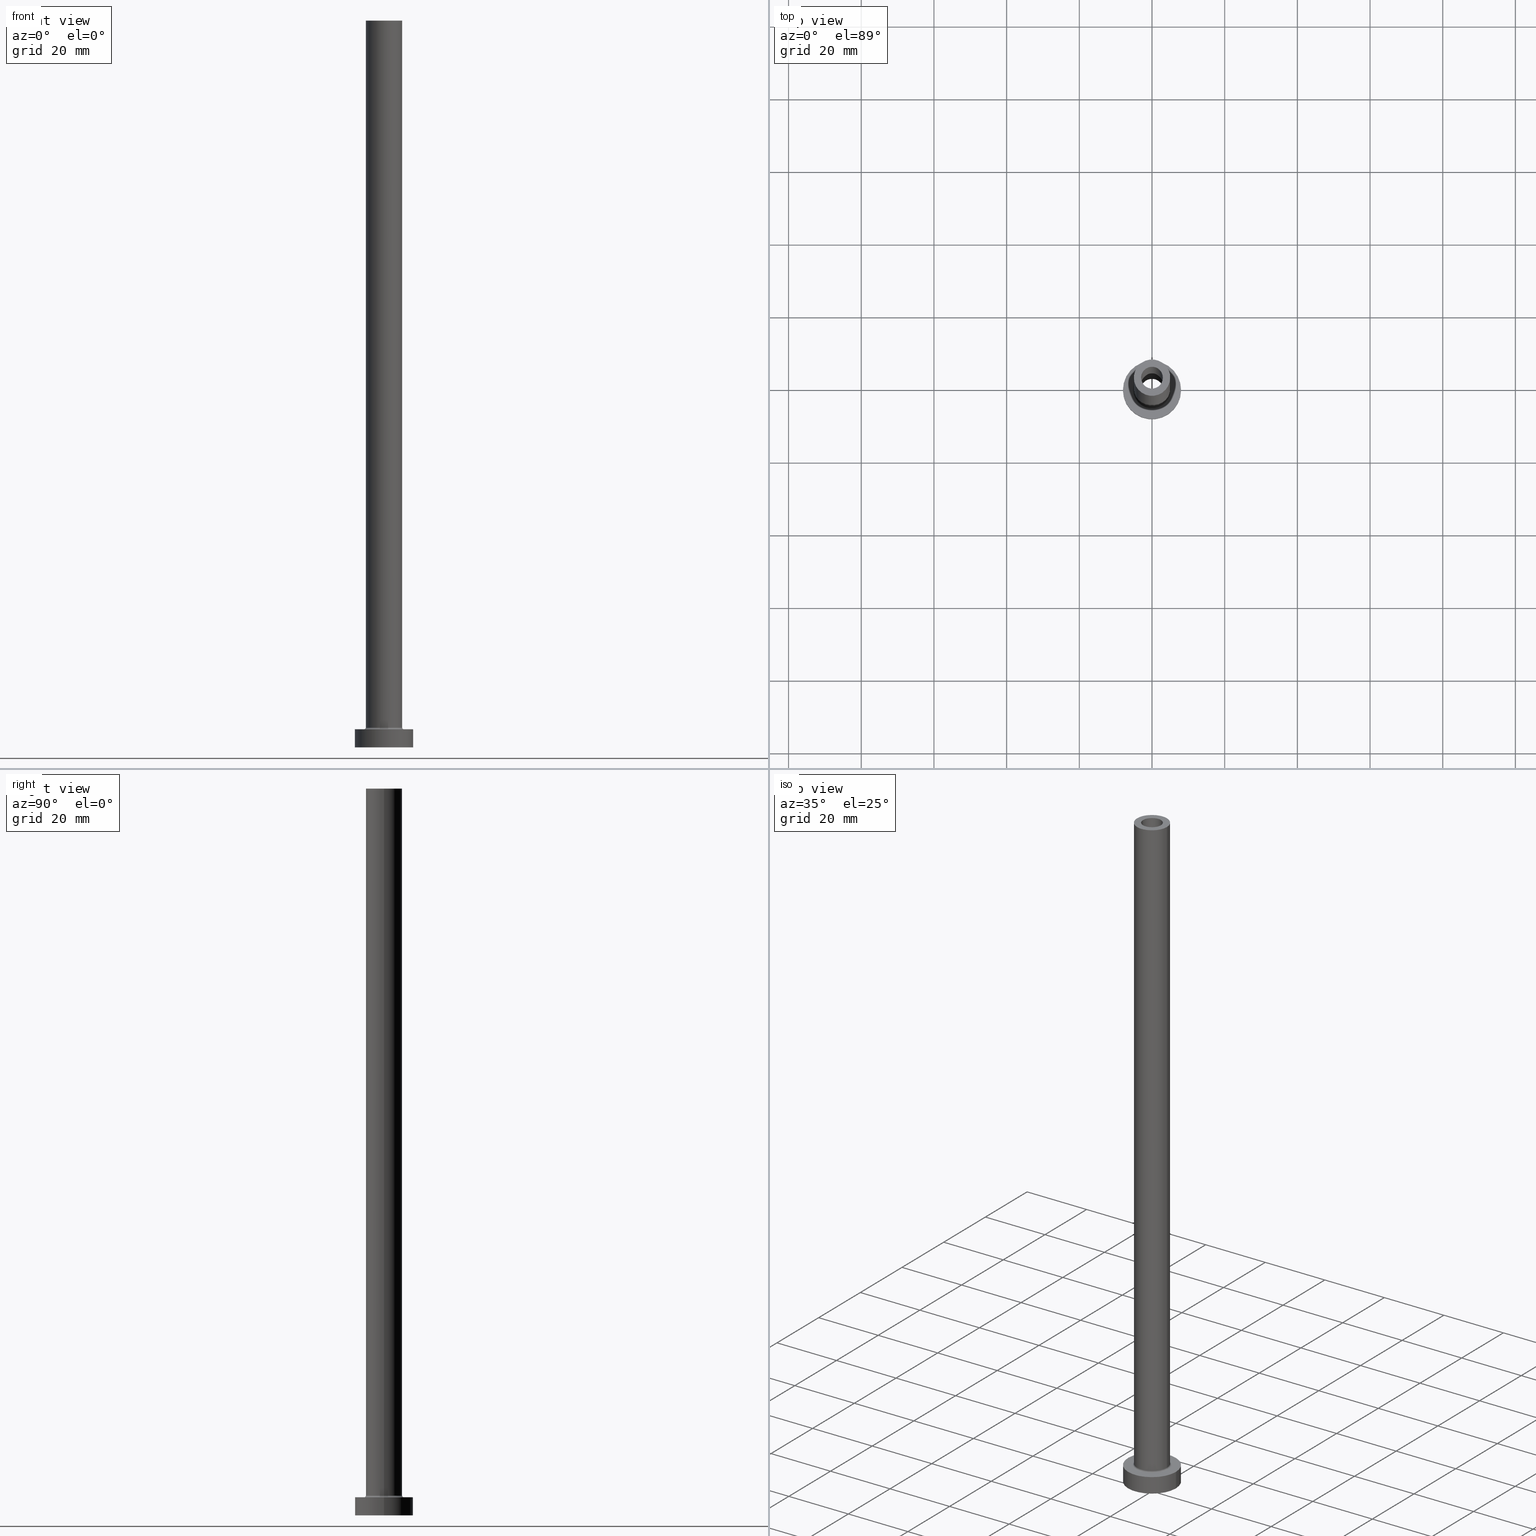
[diagram: canonical four-view strip — front | top / right | iso, engineering-drawing reading convention]
A machine part, canonical four-view strip (front | top / right | iso — engineering-drawing reading convention). The complete STEP part file that produces these views, byte-faithful:
ISO-10303-21;
HEADER;
FILE_DESCRIPTION (( 'STEP AP203' ),
    '1' );
FILE_NAME ('640f.STEP',
    '2023-02-13T15:32:00',
    ( '' ),
    ( '' ),
    'SwSTEP 2.0',
    'SolidWorks 2019',
    '' );
FILE_SCHEMA (( 'CONFIG_CONTROL_DESIGN' ));
ENDSEC;

DATA;
#1 = DIRECTION ( 'NONE',  ( 0.000000000000000000, 0.000000000000000000, 1.000000000000000000 ) ) ;
#2 = EDGE_CURVE ( 'NONE', #407, #4, #384, .T. ) ;
#3 = AXIS2_PLACEMENT_3D ( 'NONE', #393, #216, #281 ) ;
#4 = VERTEX_POINT ( 'NONE', #419 ) ;
#5 = DATE_TIME_ROLE ( 'classification_date' ) ;
#6 = DIRECTION ( 'NONE',  ( 0.000000000000000000, 0.000000000000000000, -1.000000000000000000 ) ) ;
#7 = ORIENTED_EDGE ( 'NONE', *, *, #2, .T. ) ;
#8 = FACE_OUTER_BOUND ( 'NONE', #49, .T. ) ;
#9 = APPROVAL ( #157, 'NEUR�EN�' ) ;
#10 = ORIENTED_EDGE ( 'NONE', *, *, #366, .T. ) ;
#11 = PERSON_AND_ORGANIZATION ( #141, #357 ) ;
#12 = FACE_OUTER_BOUND ( 'NONE', #291, .T. ) ;
#13 = VECTOR ( 'NONE', #430, 1000.000000000000000 ) ;
#14 = DIRECTION ( 'NONE',  ( 1.000000000000000000, 0.000000000000000000, 0.000000000000000000 ) ) ;
#15 = DIRECTION ( 'NONE',  ( 1.000000000000000000, 0.000000000000000000, 0.000000000000000000 ) ) ;
#16 = EDGE_LOOP ( 'NONE', ( #10, #416, #89, #231 ) ) ;
#17 = CYLINDRICAL_SURFACE ( 'NONE', #268, 8.000000000000000000 ) ;
#18 = ADVANCED_FACE ( 'NONE', ( #97, #31 ), #206, .T. ) ;
#19 = DIRECTION ( 'NONE',  ( -0.000000000000000000, -0.000000000000000000, -1.000000000000000000 ) ) ;
#20 = CIRCLE ( 'NONE', #39, 3.150000000000000355 ) ;
#21 = CIRCLE ( 'NONE', #181, 8.000000000000000000 ) ;
#22 = ORIENTED_EDGE ( 'NONE', *, *, #331, .T. ) ;
#23 = APPLICATION_CONTEXT ( 'configuration controlled 3d designs of mechanical parts and assemblies' ) ;
#24 = ADVANCED_FACE ( 'NONE', ( #145, #76 ), #184, .F. ) ;
#25 = ORIENTED_EDGE ( 'NONE', *, *, #124, .T. ) ;
#26 = AXIS2_PLACEMENT_3D ( 'NONE', #51, #297, #373 ) ;
#27 = DIRECTION ( 'NONE',  ( -1.000000000000000000, 0.000000000000000000, 0.000000000000000000 ) ) ;
#28 = ORIENTED_EDGE ( 'NONE', *, *, #283, .T. ) ;
#29 = ORIENTED_EDGE ( 'NONE', *, *, #445, .F. ) ;
#30 = EDGE_CURVE ( 'NONE', #363, #66, #362, .T. ) ;
#31 = FACE_OUTER_BOUND ( 'NONE', #284, .T. ) ;
#32 = ORIENTED_EDGE ( 'NONE', *, *, #408, .F. ) ;
#33 = DIRECTION ( 'NONE',  ( 1.000000000000000000, 0.000000000000000000, 0.000000000000000000 ) ) ;
#34 = CARTESIAN_POINT ( 'NONE',  ( 5.000000000000000000, 6.123233995736766282E-16, 200.0000000000000000 ) ) ;
#35 = EDGE_LOOP ( 'NONE', ( #207, #93 ) ) ;
#36 = CARTESIAN_POINT ( 'NONE',  ( 3.150000000000000355, 3.857637417314163182E-16, 155.0000000000000284 ) ) ;
#37 = CARTESIAN_POINT ( 'NONE',  ( 8.000000000000000000, 9.797174393178825657E-16, 5.000000000000000000 ) ) ;
#38 = DIRECTION ( 'NONE',  ( 0.000000000000000000, -1.000000000000000000, 0.000000000000000000 ) ) ;
#39 = AXIS2_PLACEMENT_3D ( 'NONE', #261, #156, #15 ) ;
#40 = PERSON_AND_ORGANIZATION ( #141, #357 ) ;
#41 = EDGE_CURVE ( 'NONE', #407, #338, #298, .T. ) ;
#42 = DIRECTION ( 'NONE',  ( -0.000000000000000000, -0.000000000000000000, -1.000000000000000000 ) ) ;
#43 = ORIENTED_EDGE ( 'NONE', *, *, #276, .T. ) ;
#44 = CALENDAR_DATE ( 2023, 13, 2 ) ;
#45 = CYLINDRICAL_SURFACE ( 'NONE', #61, 3.000000000000000444 ) ;
#46 = ORIENTED_EDGE ( 'NONE', *, *, #64, .T. ) ;
#47 = FACE_OUTER_BOUND ( 'NONE', #178, .T. ) ;
#48 = AXIS2_PLACEMENT_3D ( 'NONE', #182, #38, #322 ) ;
#49 = EDGE_LOOP ( 'NONE', ( #320, #238, #7, #29 ) ) ;
#50 = PERSON_AND_ORGANIZATION_ROLE ( 'creator' ) ;
#51 = CARTESIAN_POINT ( 'NONE',  ( 0.000000000000000000, 0.000000000000000000, 200.0000000000000000 ) ) ;
#52 = CC_DESIGN_PERSON_AND_ORGANIZATION_ASSIGNMENT ( #11, #152, ( #441 ) ) ;
#53 = DIRECTION ( 'NONE',  ( 1.000000000000000000, 0.000000000000000000, 0.000000000000000000 ) ) ;
#54 = VERTEX_POINT ( 'NONE', #316 ) ;
#55 = ORIENTED_EDGE ( 'NONE', *, *, #131, .F. ) ;
#56 = AXIS2_PLACEMENT_3D ( 'NONE', #228, #167, #190 ) ;
#57 = EDGE_CURVE ( 'NONE', #338, #125, #173, .T. ) ;
#58 = ORIENTED_EDGE ( 'NONE', *, *, #2, .F. ) ;
#59 = DIRECTION ( 'NONE',  ( -0.000000000000000000, -0.000000000000000000, -1.000000000000000000 ) ) ;
#60 = ORIENTED_EDGE ( 'NONE', *, *, #314, .T. ) ;
#61 = AXIS2_PLACEMENT_3D ( 'NONE', #251, #6, #354 ) ;
#62 = DIRECTION ( 'NONE',  ( 1.000000000000000000, 0.000000000000000000, 0.000000000000000000 ) ) ;
#63 = ORIENTED_EDGE ( 'NONE', *, *, #70, .F. ) ;
#64 = EDGE_CURVE ( 'NONE', #220, #67, #179, .T. ) ;
#65 = DIRECTION ( 'NONE',  ( 0.000000000000000000, 0.000000000000000000, -1.000000000000000000 ) ) ;
#66 = VERTEX_POINT ( 'NONE', #460 ) ;
#67 = VERTEX_POINT ( 'NONE', #80 ) ;
#68 = CARTESIAN_POINT ( 'NONE',  ( 5.000000000000000000, 6.123233995736766282E-16, 5.500000000000005329 ) ) ;
#69 = AXIS2_PLACEMENT_3D ( 'NONE', #318, #210, #176 ) ;
#70 = EDGE_CURVE ( 'NONE', #99, #407, #390, .T. ) ;
#71 = CARTESIAN_POINT ( 'NONE',  ( 0.000000000000000000, 0.000000000000000000, 200.0000000000000000 ) ) ;
#72 = FACE_OUTER_BOUND ( 'NONE', #197, .T. ) ;
#73 = PRODUCT_DEFINITION_SHAPE ( 'NONE', 'NONE',  #336 ) ;
#74 = CARTESIAN_POINT ( 'NONE',  ( 0.000000000000000000, 0.000000000000000000, 155.0000000000000284 ) ) ;
#75 = DATE_AND_TIME ( #257, #427 ) ;
#76 = FACE_OUTER_BOUND ( 'NONE', #151, .T. ) ;
#77 = ORIENTED_EDGE ( 'NONE', *, *, #448, .F. ) ;
#78 = AXIS2_PLACEMENT_3D ( 'NONE', #102, #143, #380 ) ;
#79 = ADVANCED_FACE ( 'NONE', ( #360 ), #45, .F. ) ;
#80 = CARTESIAN_POINT ( 'NONE',  ( -3.150000000000000355, 0.000000000000000000, 0.000000000000000000 ) ) ;
#81 = PERSON_AND_ORGANIZATION ( #141, #357 ) ;
#82 = DIRECTION ( 'NONE',  ( 1.000000000000000000, 0.000000000000000000, 0.000000000000000000 ) ) ;
#83 = PERSON_AND_ORGANIZATION ( #141, #357 ) ;
#84 = DIRECTION ( 'NONE',  ( 0.000000000000000000, 0.000000000000000000, -1.000000000000000000 ) ) ;
#85 = EDGE_CURVE ( 'NONE', #363, #91, #21, .T. ) ;
#86 = CIRCLE ( 'NONE', #26, 3.000000000000000444 ) ;
#87 = CARTESIAN_POINT ( 'NONE',  ( 0.000000000000000000, 0.000000000000000000, 5.500000000000005329 ) ) ;
#88 = ADVANCED_FACE ( 'NONE', ( #142, #388 ), #150, .T. ) ;
#89 = ORIENTED_EDGE ( 'NONE', *, *, #218, .T. ) ;
#90 = CIRCLE ( 'NONE', #410, 3.000000000000000444 ) ;
#91 = VERTEX_POINT ( 'NONE', #255 ) ;
#92 = CARTESIAN_POINT ( 'NONE',  ( 3.000000000000000444, 3.673940397442059868E-16, 155.0000000000000284 ) ) ;
#93 = ORIENTED_EDGE ( 'NONE', *, *, #85, .T. ) ;
#94 = FACE_OUTER_BOUND ( 'NONE', #16, .T. ) ;
#95 = VECTOR ( 'NONE', #438, 1000.000000000000000 ) ;
#96 = AXIS2_PLACEMENT_3D ( 'NONE', #457, #350, #14 ) ;
#97 = FACE_BOUND ( 'NONE', #309, .T. ) ;
#98 = CARTESIAN_POINT ( 'NONE',  ( 3.150000000000000355, 3.857637417314163182E-16, 163.9095454429505594 ) ) ;
#99 = VERTEX_POINT ( 'NONE', #148 ) ;
#100 = DIRECTION ( 'NONE',  ( 1.000000000000000000, 0.000000000000000000, 0.000000000000000000 ) ) ;
#101 = CARTESIAN_POINT ( 'NONE',  ( -5.500000000000000000, 6.735557395310442023E-16, 5.000000000000002665 ) ) ;
#102 = CARTESIAN_POINT ( 'NONE',  ( 0.000000000000000000, 0.000000000000000000, 5.000000000000000000 ) ) ;
#103 = TOROIDAL_SURFACE ( 'NONE', #56, 5.500000000000000000, 0.5000000000000000000 ) ;
#104 = VECTOR ( 'NONE', #383, 1000.000000000000000 ) ;
#105 = VERTEX_POINT ( 'NONE', #353 ) ;
#106 = FACE_BOUND ( 'NONE', #330, .T. ) ;
#107 = CARTESIAN_POINT ( 'NONE',  ( 0.000000000000000000, 0.000000000000000000, 5.000000000000000000 ) ) ;
#108 = COORDINATED_UNIVERSAL_TIME_OFFSET ( 1, 0, .AHEAD. ) ;
#109 = DIRECTION ( 'NONE',  ( 0.000000000000000000, 0.000000000000000000, 1.000000000000000000 ) ) ;
#110 = ADVANCED_FACE ( 'NONE', ( #8 ), #288, .T. ) ;
#111 = APPROVAL_DATE_TIME ( #75, #382 ) ;
#112 = CIRCLE ( 'NONE', #368, 3.150000000000000355 ) ;
#113 = CARTESIAN_POINT ( 'NONE',  ( 0.000000000000000000, 0.000000000000000000, 0.000000000000000000 ) ) ;
#114 = ORIENTED_EDGE ( 'NONE', *, *, #218, .F. ) ;
#115 = UNCERTAINTY_MEASURE_WITH_UNIT (LENGTH_MEASURE( 1.000000000000000082E-05 ), #344, 'distance_accuracy_value', 'NONE');
#116 = APPROVAL_DATE_TIME ( #432, #9 ) ;
#117 = CARTESIAN_POINT ( 'NONE',  ( 0.000000000000000000, 0.000000000000000000, 163.9095454429505594 ) ) ;
#118 = PRODUCT_RELATED_PRODUCT_CATEGORY ( 'detail', '', ( #441 ) ) ;
#119 = LINE ( 'NONE', #400, #160 ) ;
#120 = COORDINATED_UNIVERSAL_TIME_OFFSET ( 1, 0, .AHEAD. ) ;
#121 = DIRECTION ( 'NONE',  ( -1.000000000000000000, 0.000000000000000000, 0.000000000000000000 ) ) ;
#122 = CIRCLE ( 'NONE', #243, 8.000000000000000000 ) ;
#123 = APPROVAL_PERSON_ORGANIZATION ( #292, #9, #332 ) ;
#124 = EDGE_CURVE ( 'NONE', #125, #338, #135, .T. ) ;
#125 = VERTEX_POINT ( 'NONE', #101 ) ;
#126 = CIRCLE ( 'NONE', #404, 5.000000000000000000 ) ;
#127 = LOCAL_TIME ( 16, 32, 0.000000000000000000, #120 ) ;
#128 = DIRECTION ( 'NONE',  ( -0.000000000000000000, -0.000000000000000000, -1.000000000000000000 ) ) ;
#129 = ORIENTED_EDGE ( 'NONE', *, *, #267, .T. ) ;
#130 = DIRECTION ( 'NONE',  ( 0.000000000000000000, 0.000000000000000000, 1.000000000000000000 ) ) ;
#131 = EDGE_CURVE ( 'NONE', #67, #343, #303, .T. ) ;
#132 = ORIENTED_EDGE ( 'NONE', *, *, #131, .T. ) ;
#133 = DIRECTION ( 'NONE',  ( 0.000000000000000000, 0.000000000000000000, 1.000000000000000000 ) ) ;
#134 = DIRECTION ( 'NONE',  ( 1.000000000000000000, 0.000000000000000000, 0.000000000000000000 ) ) ;
#135 = CIRCLE ( 'NONE', #417, 5.500000000000000000 ) ;
#136 = DIRECTION ( 'NONE',  ( 0.000000000000000000, 0.000000000000000000, 1.000000000000000000 ) ) ;
#137 = ADVANCED_FACE ( 'NONE', ( #242 ), #385, .T. ) ;
#138 = CARTESIAN_POINT ( 'NONE',  ( 0.000000000000000000, 0.000000000000000000, 155.0000000000000284 ) ) ;
#139 = DIRECTION ( 'NONE',  ( 1.000000000000000000, 0.000000000000000000, 0.000000000000000000 ) ) ;
#140 = CARTESIAN_POINT ( 'NONE',  ( 0.000000000000000000, 0.000000000000000000, 155.0000000000000284 ) ) ;
#141 = PERSON ( 'NEUR�EN�', 'NEUR�EN�', 'NEUR�EN�', ('NEUR�EN�'), ('NEUR�EN�'), ('NEUR�EN�') ) ;
#142 = FACE_BOUND ( 'NONE', #345, .T. ) ;
#143 = DIRECTION ( 'NONE',  ( -0.000000000000000000, -0.000000000000000000, -1.000000000000000000 ) ) ;
#144 = AXIS2_PLACEMENT_3D ( 'NONE', #459, #389, #205 ) ;
#145 = FACE_BOUND ( 'NONE', #266, .T. ) ;
#146 = VERTEX_POINT ( 'NONE', #302 ) ;
#147 = EDGE_CURVE ( 'NONE', #4, #407, #214, .T. ) ;
#148 = CARTESIAN_POINT ( 'NONE',  ( 5.000000000000000000, 6.123233995736766282E-16, 200.0000000000000000 ) ) ;
#149 = APPROVAL_STATUS ( 'not_yet_approved' ) ;
#150 = PLANE ( 'NONE',  #215 ) ;
#151 = EDGE_LOOP ( 'NONE', ( #395, #446 ) ) ;
#152 = PERSON_AND_ORGANIZATION_ROLE ( 'design_owner' ) ;
#153 = CARTESIAN_POINT ( 'NONE',  ( 0.000000000000000000, 0.000000000000000000, 5.000000000000000000 ) ) ;
#154 = CC_DESIGN_DATE_AND_TIME_ASSIGNMENT ( #367, #5, ( #444 ) ) ;
#155 = DATE_TIME_ROLE ( 'creation_date' ) ;
#156 = DIRECTION ( 'NONE',  ( 0.000000000000000000, 0.000000000000000000, 1.000000000000000000 ) ) ;
#157 = APPROVAL_STATUS ( 'not_yet_approved' ) ;
#158 = CARTESIAN_POINT ( 'NONE',  ( 0.000000000000000000, 0.000000000000000000, 5.000000000000000000 ) ) ;
#159 = CARTESIAN_POINT ( 'NONE',  ( -3.150000000000000355, 0.000000000000000000, 155.0000000000000284 ) ) ;
#160 = VECTOR ( 'NONE', #84, 1000.000000000000000 ) ;
#161 = CC_DESIGN_APPROVAL ( #199, ( #444 ) ) ;
#162 = ADVANCED_FACE ( 'NONE', ( #47 ), #17, .T. ) ;
#163 = AXIS2_PLACEMENT_3D ( 'NONE', #456, #136, #279 ) ;
#164 = AXIS2_PLACEMENT_3D ( 'NONE', #113, #397, #219 ) ;
#165 = LOCAL_TIME ( 16, 32, 0.000000000000000000, #108 ) ;
#166 = EDGE_CURVE ( 'NONE', #105, #66, #122, .T. ) ;
#167 = DIRECTION ( 'NONE',  ( 0.000000000000000000, 0.000000000000000000, 1.000000000000000000 ) ) ;
#168 = VERTEX_POINT ( 'NONE', #193 ) ;
#169 = DIRECTION ( 'NONE',  ( 1.000000000000000000, 0.000000000000000000, 0.000000000000000000 ) ) ;
#170 = ORIENTED_EDGE ( 'NONE', *, *, #41, .T. ) ;
#171 = CC_DESIGN_PERSON_AND_ORGANIZATION_ASSIGNMENT ( #364, #361, ( #336 ) ) ;
#172 = EDGE_LOOP ( 'NONE', ( #77, #58, #170, #414 ) ) ;
#173 = CIRCLE ( 'NONE', #449, 5.500000000000000000 ) ;
#174 = CARTESIAN_POINT ( 'NONE',  ( 0.000000000000000000, 0.000000000000000000, 200.0000000000000000 ) ) ;
#175 = VERTEX_POINT ( 'NONE', #406 ) ;
#176 = DIRECTION ( 'NONE',  ( 1.000000000000000000, 0.000000000000000000, 0.000000000000000000 ) ) ;
#177 = CARTESIAN_POINT ( 'NONE',  ( 0.000000000000000000, 0.000000000000000000, 5.000000000000000000 ) ) ;
#178 = EDGE_LOOP ( 'NONE', ( #435, #249, #22, #431 ) ) ;
#179 = LINE ( 'NONE', #246, #13 ) ;
#180 = ORIENTED_EDGE ( 'NONE', *, *, #308, .F. ) ;
#181 = AXIS2_PLACEMENT_3D ( 'NONE', #325, #433, #139 ) ;
#182 = CARTESIAN_POINT ( 'NONE',  ( 5.500000000000000000, 0.000000000000000000, 5.500000000000005329 ) ) ;
#183 = PERSON_AND_ORGANIZATION_ROLE ( 'classification_officer' ) ;
#184 = PLANE ( 'NONE',  #425 ) ;
#185 = DIRECTION ( 'NONE',  ( 1.000000000000000000, 0.000000000000000000, -0.000000000000000000 ) ) ;
#186 = ADVANCED_FACE ( 'NONE', ( #294 ), #103, .F. ) ;
#187 = ORIENTED_EDGE ( 'NONE', *, *, #195, .F. ) ;
#188 = AXIS2_PLACEMENT_3D ( 'NONE', #374, #201, #134 ) ;
#189 = CIRCLE ( 'NONE', #335, 3.150000000000000355 ) ;
#190 = DIRECTION ( 'NONE',  ( 1.000000000000000000, 0.000000000000000000, 0.000000000000000000 ) ) ;
#191 = APPROVAL_DATE_TIME ( #223, #199 ) ;
#192 = DIRECTION ( 'NONE',  ( 0.000000000000000000, 0.000000000000000000, -1.000000000000000000 ) ) ;
#193 = CARTESIAN_POINT ( 'NONE',  ( 3.000000000000000444, 3.673940397442059868E-16, 200.0000000000000000 ) ) ;
#194 = ORIENTED_EDGE ( 'NONE', *, *, #195, .T. ) ;
#195 = EDGE_CURVE ( 'NONE', #175, #287, #321, .T. ) ;
#196 = AXIS2_PLACEMENT_3D ( 'NONE', #71, #209, #351 ) ;
#197 = EDGE_LOOP ( 'NONE', ( #412, #301, #355, #409 ) ) ;
#198 = ORIENTED_EDGE ( 'NONE', *, *, #57, .T. ) ;
#199 = APPROVAL ( #149, 'NEUR�EN�' ) ;
#200 = CYLINDRICAL_SURFACE ( 'NONE', #377, 3.000000000000000444 ) ;
#201 = DIRECTION ( 'NONE',  ( 0.000000000000000000, 0.000000000000000000, 1.000000000000000000 ) ) ;
#202 = VECTOR ( 'NONE', #213, 1000.000000000000000 ) ;
#203 = CARTESIAN_POINT ( 'NONE',  ( -5.500000000000000000, 6.735557395310442023E-16, 5.500000000000005329 ) ) ;
#204 = ORIENTED_EDGE ( 'NONE', *, *, #359, .T. ) ;
#205 = DIRECTION ( 'NONE',  ( 1.000000000000000000, 0.000000000000000000, -0.000000000000000000 ) ) ;
#206 = PLANE ( 'NONE',  #163 ) ;
#207 = ORIENTED_EDGE ( 'NONE', *, *, #252, .T. ) ;
#208 = PRODUCT_DEFINITION_FORMATION_WITH_SPECIFIED_SOURCE ( 'LIBOVOLN�', '', #441, .NOT_KNOWN. ) ;
#209 = DIRECTION ( 'NONE',  ( -0.000000000000000000, -0.000000000000000000, -1.000000000000000000 ) ) ;
#210 = DIRECTION ( 'NONE',  ( 0.000000000000000000, 0.000000000000000000, 1.000000000000000000 ) ) ;
#211 = DIRECTION ( 'NONE',  ( 0.000000000000000000, 0.000000000000000000, 1.000000000000000000 ) ) ;
#212 = ADVANCED_FACE ( 'NONE', ( #326 ), #200, .F. ) ;
#213 = DIRECTION ( 'NONE',  ( -0.000000000000000000, -0.000000000000000000, -1.000000000000000000 ) ) ;
#214 = CIRCLE ( 'NONE', #230, 5.000000000000000000 ) ;
#215 = AXIS2_PLACEMENT_3D ( 'NONE', #177, #211, #319 ) ;
#216 = DIRECTION ( 'NONE',  ( -0.000000000000000000, -0.000000000000000000, -1.000000000000000000 ) ) ;
#217 = DATE_AND_TIME ( #253, #277 ) ;
#218 = EDGE_CURVE ( 'NONE', #343, #67, #112, .T. ) ;
#219 = DIRECTION ( 'NONE',  ( 1.000000000000000000, 0.000000000000000000, 0.000000000000000000 ) ) ;
#220 = VERTEX_POINT ( 'NONE', #159 ) ;
#221 = PERSON_AND_ORGANIZATION ( #141, #357 ) ;
#222 = CARTESIAN_POINT ( 'NONE',  ( 0.000000000000000000, 0.000000000000000000, 163.9095454429505594 ) ) ;
#223 = DATE_AND_TIME ( #295, #304 ) ;
#224 = AXIS2_PLACEMENT_3D ( 'NONE', #153, #452, #450 ) ;
#225 = CARTESIAN_POINT ( 'NONE',  ( 0.000000000000000000, 0.000000000000000000, 200.0000000000000000 ) ) ;
#226 = APPROVAL_PERSON_ORGANIZATION ( #83, #199, #392 ) ;
#227 = ADVANCED_BREP_SHAPE_REPRESENTATION ( '640f', ( #234, #96 ), #349 ) ;
#228 = CARTESIAN_POINT ( 'NONE',  ( 0.000000000000000000, 0.000000000000000000, 5.500000000000005329 ) ) ;
#229 = EDGE_CURVE ( 'NONE', #372, #220, #20, .T. ) ;
#230 = AXIS2_PLACEMENT_3D ( 'NONE', #87, #258, #376 ) ;
#231 = ORIENTED_EDGE ( 'NONE', *, *, #64, .F. ) ;
#232 = CC_DESIGN_PERSON_AND_ORGANIZATION_ASSIGNMENT ( #221, #183, ( #444 ) ) ;
#233 = DIRECTION ( 'NONE',  ( 0.000000000000000000, 0.000000000000000000, 1.000000000000000000 ) ) ;
#234 = MANIFOLD_SOLID_BREP ( 'Odebrat vysunut�m4', #403 ) ;
#235 = LINE ( 'NONE', #365, #237 ) ;
#236 = ORIENTED_EDGE ( 'NONE', *, *, #391, .F. ) ;
#237 = VECTOR ( 'NONE', #128, 1000.000000000000000 ) ;
#238 = ORIENTED_EDGE ( 'NONE', *, *, #70, .T. ) ;
#239 = ADVANCED_FACE ( 'NONE', ( #12 ), #264, .F. ) ;
#240 = EDGE_LOOP ( 'NONE', ( #63, #180, #317, #455 ) ) ;
#241 = CARTESIAN_POINT ( 'NONE',  ( -5.000000000000000000, 0.000000000000000000, 200.0000000000000000 ) ) ;
#242 = FACE_OUTER_BOUND ( 'NONE', #240, .T. ) ;
#243 = AXIS2_PLACEMENT_3D ( 'NONE', #415, #130, #62 ) ;
#244 = CARTESIAN_POINT ( 'NONE',  ( 0.000000000000000000, 0.000000000000000000, 0.000000000000000000 ) ) ;
#245 = ADVANCED_FACE ( 'NONE', ( #94 ), #333, .F. ) ;
#246 = CARTESIAN_POINT ( 'NONE',  ( -3.150000000000000355, 0.000000000000000000, 163.9095454429505594 ) ) ;
#247 = FACE_OUTER_BOUND ( 'NONE', #269, .T. ) ;
#248 = DIRECTION ( 'NONE',  ( 1.000000000000000000, 0.000000000000000000, 0.000000000000000000 ) ) ;
#249 = ORIENTED_EDGE ( 'NONE', *, *, #30, .T. ) ;
#250 = COORDINATED_UNIVERSAL_TIME_OFFSET ( 1, 0, .AHEAD. ) ;
#251 = CARTESIAN_POINT ( 'NONE',  ( 0.000000000000000000, 0.000000000000000000, 200.0000000000000000 ) ) ;
#252 = EDGE_CURVE ( 'NONE', #91, #363, #426, .T. ) ;
#253 = CALENDAR_DATE ( 2023, 13, 2 ) ;
#254 = AXIS2_PLACEMENT_3D ( 'NONE', #225, #233, #82 ) ;
#255 = CARTESIAN_POINT ( 'NONE',  ( -8.000000000000000000, 0.000000000000000000, 5.000000000000000000 ) ) ;
#256 = ORIENTED_EDGE ( 'NONE', *, *, #229, .T. ) ;
#257 = CALENDAR_DATE ( 2023, 13, 2 ) ;
#258 = DIRECTION ( 'NONE',  ( 0.000000000000000000, 0.000000000000000000, 1.000000000000000000 ) ) ;
#259 = EDGE_LOOP ( 'NONE', ( #341, #306, #43, #299 ) ) ;
#260 = COORDINATED_UNIVERSAL_TIME_OFFSET ( 1, 0, .AHEAD. ) ;
#261 = CARTESIAN_POINT ( 'NONE',  ( 0.000000000000000000, 0.000000000000000000, 155.0000000000000284 ) ) ;
#262 = APPROVAL_ROLE ( '' ) ;
#263 = AXIS2_PLACEMENT_3D ( 'NONE', #117, #370, #27 ) ;
#264 = CYLINDRICAL_SURFACE ( 'NONE', #263, 3.150000000000000355 ) ;
#265 = DESIGN_CONTEXT ( 'detailed design', #23, 'design' ) ;
#266 = EDGE_LOOP ( 'NONE', ( #194, #204 ) ) ;
#267 = EDGE_CURVE ( 'NONE', #91, #105, #235, .T. ) ;
#268 = AXIS2_PLACEMENT_3D ( 'NONE', #158, #59, #121 ) ;
#269 = EDGE_LOOP ( 'NONE', ( #461, #273 ) ) ;
#270 = CARTESIAN_POINT ( 'NONE',  ( 0.000000000000000000, 0.000000000000000000, 200.0000000000000000 ) ) ;
#271 = ORIENTED_EDGE ( 'NONE', *, *, #252, .F. ) ;
#272 = DIRECTION ( 'NONE',  ( -1.000000000000000000, 0.000000000000000000, 0.000000000000000000 ) ) ;
#273 = ORIENTED_EDGE ( 'NONE', *, *, #331, .F. ) ;
#274 = DIRECTION ( 'NONE',  ( 0.000000000000000000, 0.000000000000000000, 1.000000000000000000 ) ) ;
#275 = AXIS2_PLACEMENT_3D ( 'NONE', #244, #1, #100 ) ;
#276 = EDGE_CURVE ( 'NONE', #146, #175, #413, .T. ) ;
#277 = LOCAL_TIME ( 16, 32, 0.000000000000000000, #323 ) ;
#278 = PLANE ( 'NONE',  #144 ) ;
#279 = DIRECTION ( 'NONE',  ( 1.000000000000000000, 0.000000000000000000, -0.000000000000000000 ) ) ;
#280 =( NAMED_UNIT ( * ) SI_UNIT ( $, .STERADIAN. ) SOLID_ANGLE_UNIT ( ) );
#281 = DIRECTION ( 'NONE',  ( -1.000000000000000000, 0.000000000000000000, 0.000000000000000000 ) ) ;
#282 = DIRECTION ( 'NONE',  ( -1.000000000000000000, 1.224646799147351482E-16, 0.000000000000000000 ) ) ;
#283 = EDGE_CURVE ( 'NONE', #168, #287, #119, .T. ) ;
#284 = EDGE_LOOP ( 'NONE', ( #379, #453 ) ) ;
#285 = AXIS2_PLACEMENT_3D ( 'NONE', #286, #352, #454 ) ;
#286 = CARTESIAN_POINT ( 'NONE',  ( 0.000000000000000000, 0.000000000000000000, 5.500000000000005329 ) ) ;
#287 = VERTEX_POINT ( 'NONE', #92 ) ;
#288 = CYLINDRICAL_SURFACE ( 'NONE', #3, 5.000000000000000000 ) ;
#289 = SHAPE_DEFINITION_REPRESENTATION ( #73, #227 ) ;
#290 = DIRECTION ( 'NONE',  ( -0.000000000000000000, -0.000000000000000000, -1.000000000000000000 ) ) ;
#291 = EDGE_LOOP ( 'NONE', ( #32, #256, #46, #132 ) ) ;
#292 = PERSON_AND_ORGANIZATION ( #141, #357 ) ;
#293 = CIRCLE ( 'NONE', #275, 8.000000000000000000 ) ;
#294 = FACE_OUTER_BOUND ( 'NONE', #172, .T. ) ;
#295 = CALENDAR_DATE ( 2023, 13, 2 ) ;
#296 = PERSON_AND_ORGANIZATION_ROLE ( 'design_supplier' ) ;
#297 = DIRECTION ( 'NONE',  ( 0.000000000000000000, 0.000000000000000000, 1.000000000000000000 ) ) ;
#298 = CIRCLE ( 'NONE', #48, 0.5000000000000004441 ) ;
#299 = ORIENTED_EDGE ( 'NONE', *, *, #359, .F. ) ;
#300 = CC_DESIGN_PERSON_AND_ORGANIZATION_ASSIGNMENT ( #81, #296, ( #208 ) ) ;
#301 = ORIENTED_EDGE ( 'NONE', *, *, #448, .T. ) ;
#302 = CARTESIAN_POINT ( 'NONE',  ( -3.000000000000000444, 0.000000000000000000, 200.0000000000000000 ) ) ;
#303 = CIRCLE ( 'NONE', #164, 3.150000000000000355 ) ;
#304 = LOCAL_TIME ( 16, 32, 0.000000000000000000, #260 ) ;
#305 = CARTESIAN_POINT ( 'NONE',  ( 0.000000000000000000, 0.000000000000000000, 155.0000000000000284 ) ) ;
#306 = ORIENTED_EDGE ( 'NONE', *, *, #391, .T. ) ;
#307 = CYLINDRICAL_SURFACE ( 'NONE', #78, 8.000000000000000000 ) ;
#308 = EDGE_CURVE ( 'NONE', #54, #99, #356, .T. ) ;
#309 = EDGE_LOOP ( 'NONE', ( #447, #236 ) ) ;
#310 = CARTESIAN_POINT ( 'NONE',  ( 8.000000000000000000, 9.797174393178825657E-16, 5.000000000000000000 ) ) ;
#311 = APPLICATION_CONTEXT ( 'configuration controlled 3d designs of mechanical parts and assemblies' ) ;
#312 = EDGE_LOOP ( 'NONE', ( #381, #271, #129, #337 ) ) ;
#313 = APPLICATION_PROTOCOL_DEFINITION ( 'international standard', 'config_control_design', 1994, #311 ) ;
#314 = EDGE_CURVE ( 'NONE', #146, #168, #86, .T. ) ;
#315 = CARTESIAN_POINT ( 'NONE',  ( 5.500000000000000000, 0.000000000000000000, 5.000000000000002665 ) ) ;
#316 = CARTESIAN_POINT ( 'NONE',  ( -5.000000000000000000, 0.000000000000000000, 200.0000000000000000 ) ) ;
#317 = ORIENTED_EDGE ( 'NONE', *, *, #445, .T. ) ;
#318 = CARTESIAN_POINT ( 'NONE',  ( 0.000000000000000000, 0.000000000000000000, 200.0000000000000000 ) ) ;
#319 = DIRECTION ( 'NONE',  ( 1.000000000000000000, 0.000000000000000000, -0.000000000000000000 ) ) ;
#320 = ORIENTED_EDGE ( 'NONE', *, *, #436, .F. ) ;
#321 = CIRCLE ( 'NONE', #394, 3.000000000000000444 ) ;
#322 = DIRECTION ( 'NONE',  ( 0.000000000000000000, 0.000000000000000000, -1.000000000000000000 ) ) ;
#323 = COORDINATED_UNIVERSAL_TIME_OFFSET ( 1, 0, .AHEAD. ) ;
#324 = ADVANCED_FACE ( 'NONE', ( #442 ), #307, .T. ) ;
#325 = CARTESIAN_POINT ( 'NONE',  ( 0.000000000000000000, 0.000000000000000000, 5.000000000000000000 ) ) ;
#326 = FACE_OUTER_BOUND ( 'NONE', #347, .T. ) ;
#327 = APPROVAL_STATUS ( 'not_yet_approved' ) ;
#328 = VECTOR ( 'NONE', #65, 1000.000000000000000 ) ;
#329 = DIRECTION ( 'NONE',  ( 1.000000000000000000, 0.000000000000000000, 0.000000000000000000 ) ) ;
#330 = EDGE_LOOP ( 'NONE', ( #55, #114 ) ) ;
#331 = EDGE_CURVE ( 'NONE', #66, #105, #293, .T. ) ;
#332 = APPROVAL_ROLE ( '' ) ;
#333 = CYLINDRICAL_SURFACE ( 'NONE', #443, 3.150000000000000355 ) ;
#334 = CARTESIAN_POINT ( 'NONE',  ( 0.000000000000000000, 0.000000000000000000, 0.000000000000000000 ) ) ;
#335 = AXIS2_PLACEMENT_3D ( 'NONE', #138, #133, #387 ) ;
#336 = PRODUCT_DEFINITION ( 'NEZN�M�', '', #208, #265 ) ;
#337 = ORIENTED_EDGE ( 'NONE', *, *, #166, .T. ) ;
#338 = VERTEX_POINT ( 'NONE', #315 ) ;
#339 = DIRECTION ( 'NONE',  ( -1.000000000000000000, 0.000000000000000000, 0.000000000000000000 ) ) ;
#340 = CIRCLE ( 'NONE', #69, 3.000000000000000444 ) ;
#341 = ORIENTED_EDGE ( 'NONE', *, *, #283, .F. ) ;
#342 = DIRECTION ( 'NONE',  ( 1.224646799147353207E-16, 1.000000000000000000, -0.000000000000000000 ) ) ;
#343 = VERTEX_POINT ( 'NONE', #421 ) ;
#344 =( LENGTH_UNIT ( ) NAMED_UNIT ( * ) SI_UNIT ( .MILLI., .METRE. ) );
#345 = EDGE_LOOP ( 'NONE', ( #198, #25 ) ) ;
#346 = DIRECTION ( 'NONE',  ( 0.000000000000000000, 0.000000000000000000, 1.000000000000000000 ) ) ;
#347 = EDGE_LOOP ( 'NONE', ( #60, #28, #187, #451 ) ) ;
#348 = TOROIDAL_SURFACE ( 'NONE', #285, 5.500000000000000000, 0.5000000000000000000 ) ;
#349 =( GEOMETRIC_REPRESENTATION_CONTEXT ( 3 ) GLOBAL_UNCERTAINTY_ASSIGNED_CONTEXT ( ( #115 ) ) GLOBAL_UNIT_ASSIGNED_CONTEXT ( ( #344, #424, #280 ) ) REPRESENTATION_CONTEXT ( 'NONE', 'WORKASPACE' ) );
#350 = DIRECTION ( 'NONE',  ( 0.000000000000000000, 0.000000000000000000, 1.000000000000000000 ) ) ;
#351 = DIRECTION ( 'NONE',  ( -1.000000000000000000, 0.000000000000000000, 0.000000000000000000 ) ) ;
#352 = DIRECTION ( 'NONE',  ( 0.000000000000000000, 0.000000000000000000, 1.000000000000000000 ) ) ;
#353 = CARTESIAN_POINT ( 'NONE',  ( -8.000000000000000000, 0.000000000000000000, 0.000000000000000000 ) ) ;
#354 = DIRECTION ( 'NONE',  ( -1.000000000000000000, 0.000000000000000000, 0.000000000000000000 ) ) ;
#355 = ORIENTED_EDGE ( 'NONE', *, *, #57, .F. ) ;
#356 = CIRCLE ( 'NONE', #254, 5.000000000000000000 ) ;
#357 = ORGANIZATION ( 'NEUR�EN�', 'NEUR�EN�', '' ) ;
#358 = APPLICATION_PROTOCOL_DEFINITION ( 'international standard', 'config_control_design', 1994, #23 ) ;
#359 = EDGE_CURVE ( 'NONE', #287, #175, #90, .T. ) ;
#360 = FACE_OUTER_BOUND ( 'NONE', #259, .T. ) ;
#361 = PERSON_AND_ORGANIZATION_ROLE ( 'creator' ) ;
#362 = LINE ( 'NONE', #37, #202 ) ;
#363 = VERTEX_POINT ( 'NONE', #310 ) ;
#364 = PERSON_AND_ORGANIZATION ( #141, #357 ) ;
#365 = CARTESIAN_POINT ( 'NONE',  ( -8.000000000000000000, 0.000000000000000000, 5.000000000000000000 ) ) ;
#366 = EDGE_CURVE ( 'NONE', #220, #372, #189, .T. ) ;
#367 = DATE_AND_TIME ( #44, #165 ) ;
#368 = AXIS2_PLACEMENT_3D ( 'NONE', #334, #19, #329 ) ;
#369 = APPROVAL_PERSON_ORGANIZATION ( #398, #382, #262 ) ;
#370 = DIRECTION ( 'NONE',  ( 0.000000000000000000, 0.000000000000000000, -1.000000000000000000 ) ) ;
#371 = DIRECTION ( 'NONE',  ( 0.000000000000000000, 0.000000000000000000, 1.000000000000000000 ) ) ;
#372 = VERTEX_POINT ( 'NONE', #36 ) ;
#373 = DIRECTION ( 'NONE',  ( 1.000000000000000000, 0.000000000000000000, 0.000000000000000000 ) ) ;
#374 = CARTESIAN_POINT ( 'NONE',  ( 0.000000000000000000, 0.000000000000000000, 5.500000000000005329 ) ) ;
#375 = ADVANCED_FACE ( 'NONE', ( #72 ), #348, .F. ) ;
#376 = DIRECTION ( 'NONE',  ( 1.000000000000000000, 0.000000000000000000, 0.000000000000000000 ) ) ;
#377 = AXIS2_PLACEMENT_3D ( 'NONE', #270, #192, #339 ) ;
#378 = CC_DESIGN_APPROVAL ( #382, ( #208 ) ) ;
#379 = ORIENTED_EDGE ( 'NONE', *, *, #308, .T. ) ;
#380 = DIRECTION ( 'NONE',  ( -1.000000000000000000, 0.000000000000000000, 0.000000000000000000 ) ) ;
#381 = ORIENTED_EDGE ( 'NONE', *, *, #30, .F. ) ;
#382 = APPROVAL ( #327, 'NEUR�EN�' ) ;
#383 = DIRECTION ( 'NONE',  ( -0.000000000000000000, -0.000000000000000000, -1.000000000000000000 ) ) ;
#384 = CIRCLE ( 'NONE', #188, 5.000000000000000000 ) ;
#385 = CYLINDRICAL_SURFACE ( 'NONE', #196, 5.000000000000000000 ) ;
#386 = VECTOR ( 'NONE', #290, 1000.000000000000000 ) ;
#387 = DIRECTION ( 'NONE',  ( 1.000000000000000000, 0.000000000000000000, 0.000000000000000000 ) ) ;
#388 = FACE_OUTER_BOUND ( 'NONE', #35, .T. ) ;
#389 = DIRECTION ( 'NONE',  ( 0.000000000000000000, 0.000000000000000000, 1.000000000000000000 ) ) ;
#390 = LINE ( 'NONE', #34, #386 ) ;
#391 = EDGE_CURVE ( 'NONE', #168, #146, #340, .T. ) ;
#392 = APPROVAL_ROLE ( '' ) ;
#393 = CARTESIAN_POINT ( 'NONE',  ( 0.000000000000000000, 0.000000000000000000, 200.0000000000000000 ) ) ;
#394 = AXIS2_PLACEMENT_3D ( 'NONE', #305, #371, #53 ) ;
#395 = ORIENTED_EDGE ( 'NONE', *, *, #366, .F. ) ;
#396 = CIRCLE ( 'NONE', #405, 0.5000000000000004441 ) ;
#397 = DIRECTION ( 'NONE',  ( -0.000000000000000000, -0.000000000000000000, -1.000000000000000000 ) ) ;
#398 = PERSON_AND_ORGANIZATION ( #141, #357 ) ;
#399 = CC_DESIGN_PERSON_AND_ORGANIZATION_ASSIGNMENT ( #40, #50, ( #208 ) ) ;
#400 = CARTESIAN_POINT ( 'NONE',  ( 3.000000000000000444, 3.673940397442059868E-16, 200.0000000000000000 ) ) ;
#401 = CALENDAR_DATE ( 2023, 13, 2 ) ;
#402 = DIRECTION ( 'NONE',  ( 0.000000000000000000, 0.000000000000000000, -1.000000000000000000 ) ) ;
#403 = CLOSED_SHELL ( 'NONE', ( #212, #245, #375, #110, #162, #324, #88, #420, #137, #18, #186, #239, #24, #79 ) ) ;
#404 = AXIS2_PLACEMENT_3D ( 'NONE', #174, #274, #33 ) ;
#405 = AXIS2_PLACEMENT_3D ( 'NONE', #203, #342, #282 ) ;
#406 = CARTESIAN_POINT ( 'NONE',  ( -3.000000000000000444, 0.000000000000000000, 155.0000000000000284 ) ) ;
#407 = VERTEX_POINT ( 'NONE', #68 ) ;
#408 = EDGE_CURVE ( 'NONE', #372, #343, #428, .T. ) ;
#409 = ORIENTED_EDGE ( 'NONE', *, *, #41, .F. ) ;
#410 = AXIS2_PLACEMENT_3D ( 'NONE', #140, #346, #169 ) ;
#411 = CC_DESIGN_APPROVAL ( #9, ( #336 ) ) ;
#412 = ORIENTED_EDGE ( 'NONE', *, *, #147, .F. ) ;
#413 = LINE ( 'NONE', #439, #95 ) ;
#414 = ORIENTED_EDGE ( 'NONE', *, *, #124, .F. ) ;
#415 = CARTESIAN_POINT ( 'NONE',  ( 0.000000000000000000, 0.000000000000000000, 0.000000000000000000 ) ) ;
#416 = ORIENTED_EDGE ( 'NONE', *, *, #408, .T. ) ;
#417 = AXIS2_PLACEMENT_3D ( 'NONE', #434, #42, #423 ) ;
#418 = CC_DESIGN_SECURITY_CLASSIFICATION ( #444, ( #208 ) ) ;
#419 = CARTESIAN_POINT ( 'NONE',  ( -5.000000000000000000, 0.000000000000000000, 5.500000000000005329 ) ) ;
#420 = ADVANCED_FACE ( 'NONE', ( #106, #247 ), #278, .F. ) ;
#421 = CARTESIAN_POINT ( 'NONE',  ( 3.150000000000000355, 3.857637417314163182E-16, 0.000000000000000000 ) ) ;
#422 = LINE ( 'NONE', #241, #104 ) ;
#423 = DIRECTION ( 'NONE',  ( 1.000000000000000000, 0.000000000000000000, 0.000000000000000000 ) ) ;
#424 =( NAMED_UNIT ( * ) PLANE_ANGLE_UNIT ( ) SI_UNIT ( $, .RADIAN. ) );
#425 = AXIS2_PLACEMENT_3D ( 'NONE', #74, #109, #185 ) ;
#426 = CIRCLE ( 'NONE', #224, 8.000000000000000000 ) ;
#427 = LOCAL_TIME ( 16, 32, 0.000000000000000000, #250 ) ;
#428 = LINE ( 'NONE', #98, #328 ) ;
#429 = CC_DESIGN_DATE_AND_TIME_ASSIGNMENT ( #217, #155, ( #336 ) ) ;
#430 = DIRECTION ( 'NONE',  ( 0.000000000000000000, 0.000000000000000000, -1.000000000000000000 ) ) ;
#431 = ORIENTED_EDGE ( 'NONE', *, *, #267, .F. ) ;
#432 = DATE_AND_TIME ( #401, #127 ) ;
#433 = DIRECTION ( 'NONE',  ( 0.000000000000000000, 0.000000000000000000, 1.000000000000000000 ) ) ;
#434 = CARTESIAN_POINT ( 'NONE',  ( 0.000000000000000000, 0.000000000000000000, 5.000000000000000000 ) ) ;
#435 = ORIENTED_EDGE ( 'NONE', *, *, #85, .F. ) ;
#436 = EDGE_CURVE ( 'NONE', #99, #54, #126, .T. ) ;
#437 = MECHANICAL_CONTEXT ( 'NONE', #311, 'mechanical' ) ;
#438 = DIRECTION ( 'NONE',  ( 0.000000000000000000, 0.000000000000000000, -1.000000000000000000 ) ) ;
#439 = CARTESIAN_POINT ( 'NONE',  ( -3.000000000000000444, 0.000000000000000000, 200.0000000000000000 ) ) ;
#440 = SECURITY_CLASSIFICATION_LEVEL ( 'unclassified' ) ;
#441 = PRODUCT ( '640f', '640f', '', ( #437 ) ) ;
#442 = FACE_OUTER_BOUND ( 'NONE', #312, .T. ) ;
#443 = AXIS2_PLACEMENT_3D ( 'NONE', #222, #402, #272 ) ;
#444 = SECURITY_CLASSIFICATION ( '', '', #440 ) ;
#445 = EDGE_CURVE ( 'NONE', #54, #4, #422, .T. ) ;
#446 = ORIENTED_EDGE ( 'NONE', *, *, #229, .F. ) ;
#447 = ORIENTED_EDGE ( 'NONE', *, *, #314, .F. ) ;
#448 = EDGE_CURVE ( 'NONE', #4, #125, #396, .T. ) ;
#449 = AXIS2_PLACEMENT_3D ( 'NONE', #107, #458, #248 ) ;
#450 = DIRECTION ( 'NONE',  ( 1.000000000000000000, 0.000000000000000000, 0.000000000000000000 ) ) ;
#451 = ORIENTED_EDGE ( 'NONE', *, *, #276, .F. ) ;
#452 = DIRECTION ( 'NONE',  ( 0.000000000000000000, 0.000000000000000000, 1.000000000000000000 ) ) ;
#453 = ORIENTED_EDGE ( 'NONE', *, *, #436, .T. ) ;
#454 = DIRECTION ( 'NONE',  ( 1.000000000000000000, 0.000000000000000000, 0.000000000000000000 ) ) ;
#455 = ORIENTED_EDGE ( 'NONE', *, *, #147, .T. ) ;
#456 = CARTESIAN_POINT ( 'NONE',  ( 0.000000000000000000, 0.000000000000000000, 200.0000000000000000 ) ) ;
#457 = CARTESIAN_POINT ( 'NONE',  ( 0.000000000000000000, 0.000000000000000000, 0.000000000000000000 ) ) ;
#458 = DIRECTION ( 'NONE',  ( -0.000000000000000000, -0.000000000000000000, -1.000000000000000000 ) ) ;
#459 = CARTESIAN_POINT ( 'NONE',  ( 0.000000000000000000, 0.000000000000000000, 0.000000000000000000 ) ) ;
#460 = CARTESIAN_POINT ( 'NONE',  ( 8.000000000000000000, 9.797174393178825657E-16, 0.000000000000000000 ) ) ;
#461 = ORIENTED_EDGE ( 'NONE', *, *, #166, .F. ) ;
ENDSEC;
END-ISO-10303-21;
